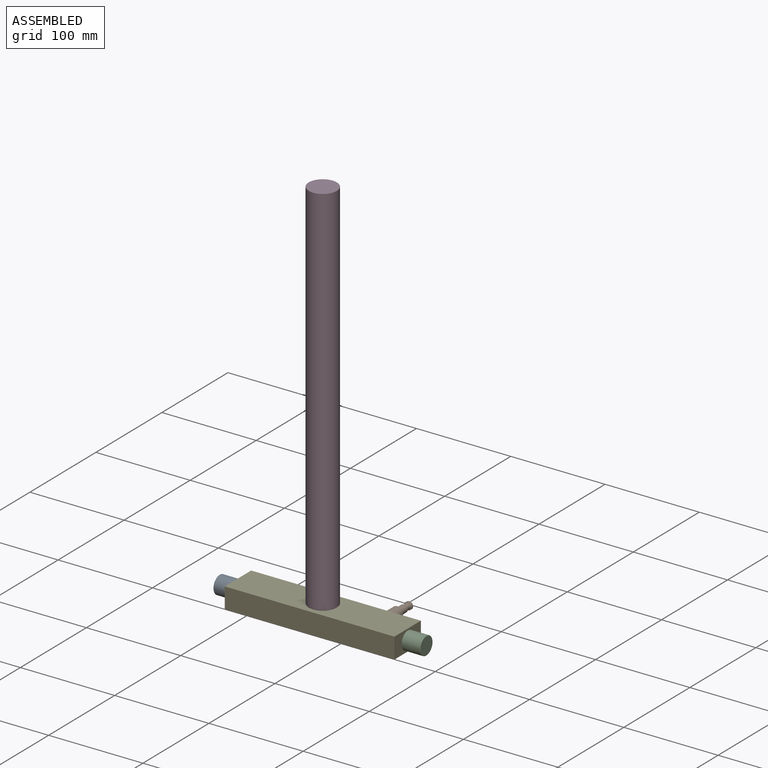
[diagram: assembled view]
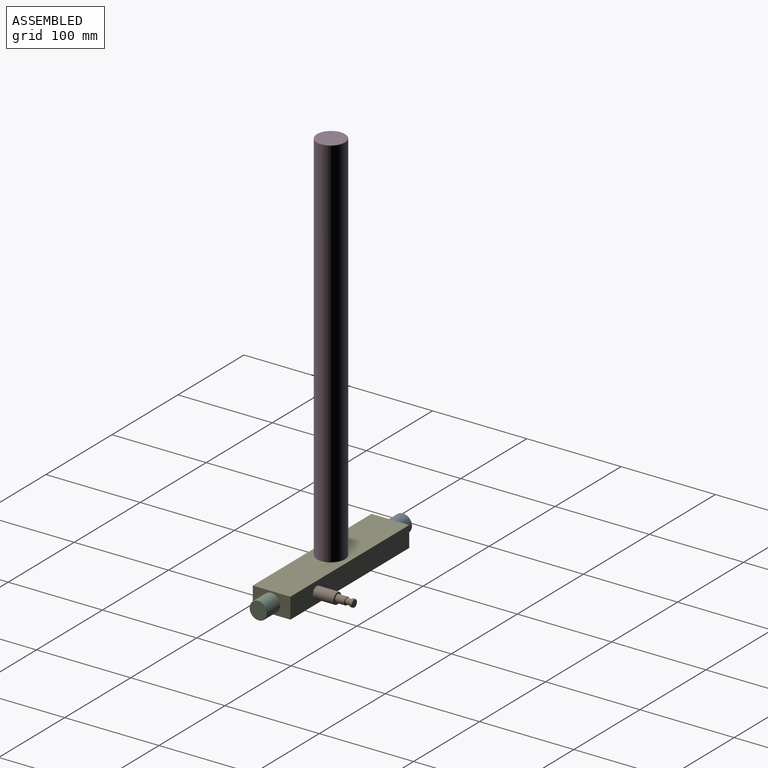
[diagram: assembled view, second angle]
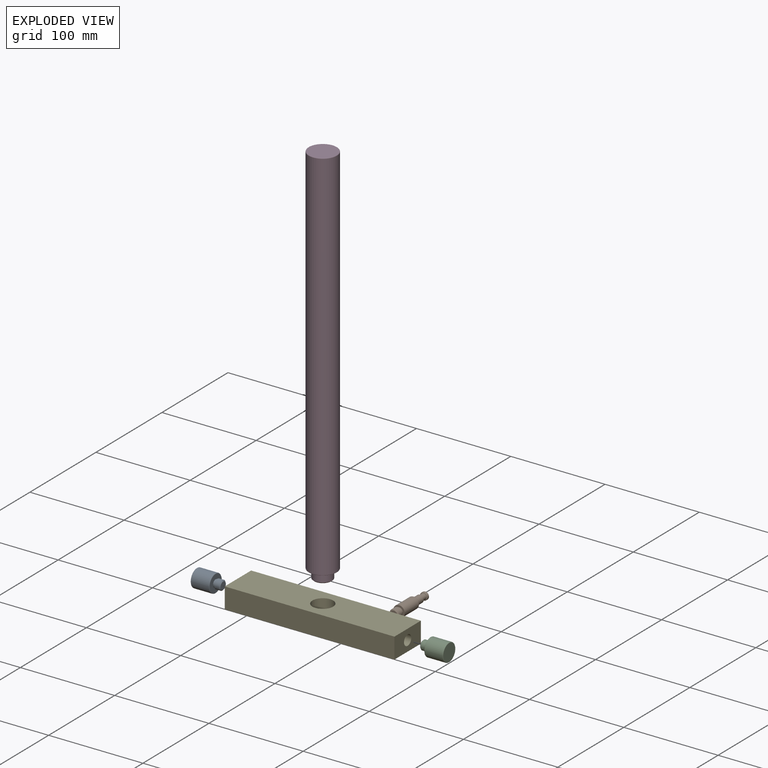
[diagram: exploded view]
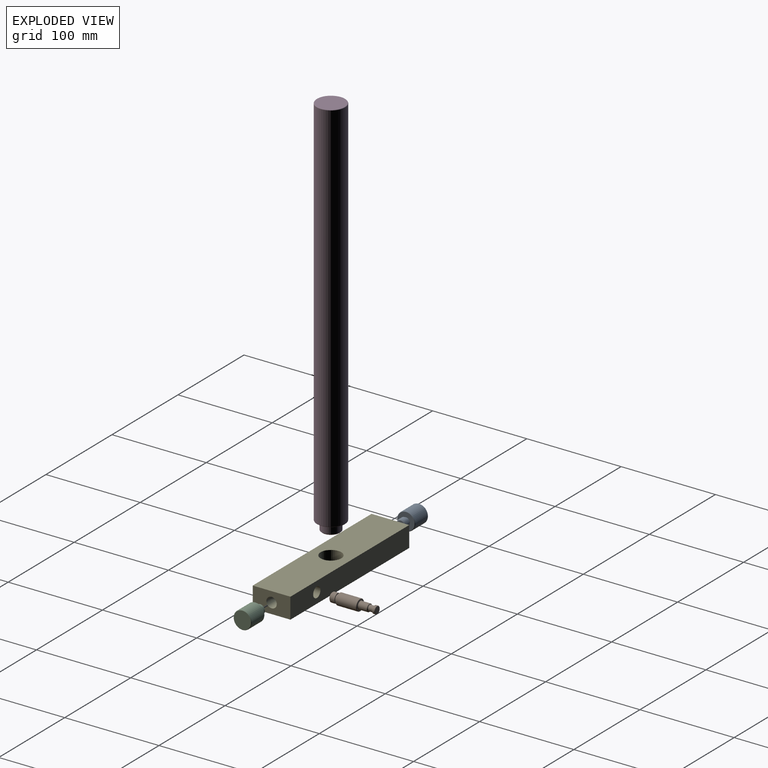
[diagram: exploded view, second angle]
ASSEMBLY  parts=5 mates=4
PART A: 10 faces, bbox 20.6x20.6x28 mm
  f0: cylinder r=9.5mm len=19mm, axis (0,0,1), area 1134.1mm2, adj f3,f4
  f1: plane 18x18mm, normal (0,0,-1), area 254.5mm2, adj f4
  f2: plane 18x18mm, normal (0,0,1), area 204.2mm2, adj f3,f6
  f3: torus R=9mm, axis (0,0,1), area 46mm2, adj f0,f2
  f4: torus R=9mm, axis (0,0,1), area 46mm2, adj f0,f1
  f5: plane 10x10mm, normal (0,0,-1), area 28.3mm2, adj f6,f9
  f6: cylinder r=4mm len=8mm, axis (0,0,1), area 50.3mm2, adj f2,f5
  f7: plane 8x8mm, normal (0,0,1), area 50.3mm2, adj f8
  f8: cone r=4mm half-angle=45deg, axis (0,0,-1), area 40mm2, adj f7,f9
  f9: cylinder r=5mm len=10mm, axis (0,0,-1), area 157.1mm2, adj f5,f8
PART B: 19 faces, bbox 13x13x48 mm
  f0: cylinder r=6mm len=21.5mm, axis (0,0,1), area 810.5mm2, adj f1,f8
  f1: plane 12x12mm, normal (0,0,1), area 62.8mm2, adj f0,f15
  f2: cylinder r=4mm len=9mm, axis (0,0,-1), area 226.2mm2, adj f7,f12
  f3: plane 11x11mm, normal (0,0,-1), area 31.4mm2, adj f7,f8
  f4: cylinder r=4mm len=8mm, axis (0,0,-1), area 50.3mm2, adj f9,f11
  f5: cylinder r=3mm len=6mm, axis (0,0,-1), area 75.4mm2, adj f10,f13
  f6: plane 7x7mm, normal (0,0,-1), area 38.5mm2, adj f9
  f7: torus R=4.5mm, axis (0,0,1), area 20.6mm2, adj f2,f3
  f8: torus R=5.5mm, axis (0,0,1), area 28.7mm2, adj f0,f3
  f9: torus R=3.5mm, axis (0,0,1), area 18.8mm2, adj f4,f6
  f10: torus R=3.5mm, axis (0,0,1), area 15.7mm2, adj f5,f11
  f11: torus R=3.5mm, axis (0,0,1), area 18.8mm2, adj f4,f10
  f12: torus R=3.5mm, axis (0,0,1), area 18.8mm2, adj f2,f13
  f13: torus R=3.5mm, axis (0,0,1), area 15.7mm2, adj f5,f12
  f14: plane 10x10mm, normal (0,0,-1), area 28.3mm2, adj f15,f17
  f15: cylinder r=4mm len=8mm, axis (0,0,1), area 50.3mm2, adj f1,f14
  f16: plane 8x8mm, normal (0,0,1), area 50.3mm2, adj f18
  f17: cylinder r=5mm len=10mm, axis (0,0,-1), area 157.1mm2, adj f14,f18
  f18: cone r=4mm half-angle=45deg, axis (0,0,-1), area 40mm2, adj f16,f17
PART C: same geometry as A
PART D: 10 faces, bbox 32.5x32.5x410 mm
  f0: cylinder r=15mm len=399mm, axis (0,0,1), area 37604.9mm2, adj f3,f4
  f1: plane 29x29mm, normal (0,0,-1), area 660.5mm2, adj f4
  f2: plane 29x29mm, normal (0,0,1), area 406.1mm2, adj f3,f6
  f3: torus R=14.5mm, axis (0,0,1), area 73.1mm2, adj f0,f2
  f4: torus R=14.5mm, axis (0,0,1), area 73.1mm2, adj f0,f1
  f5: plane 20x20mm, normal (0,0,-1), area 59.7mm2, adj f6,f9
  f6: cylinder r=9mm len=18mm, axis (0,0,1), area 113.1mm2, adj f2,f5
  f7: plane 18x18mm, normal (0,0,1), area 254.5mm2, adj f8
  f8: cone r=9mm half-angle=45deg, axis (0,0,-1), area 84.4mm2, adj f7,f9
  f9: cylinder r=10mm len=20mm, axis (0,0,-1), area 439.8mm2, adj f5,f8
PART E: 14 faces, bbox 180x40x22 mm
  f0: plane 40x22mm, normal (-1,0,0), area 785mm2, adj f1,f3,f4,f5,f8
  f1: plane 180x22mm, normal (0,-1,0), area 3960mm2, adj f0,f2,f4,f5
  f2: plane 40x22mm, normal (1,0,0), area 785mm2, adj f1,f3,f4,f5,f10
  f3: plane 180x22mm, normal (0,1,0), area 3865mm2, adj f0,f2,f4,f5,f12
  f4: plane 180x40mm, normal (0,0,-1), area 7200mm2, adj f0,f1,f2,f3
  f5: plane 180x40mm, normal (0,0,1), area 6819.9mm2, adj f0,f1,f2,f3,f6
  f6: cylinder r=11mm len=22mm, axis (0,0,1), area 1036.7mm2, adj f5,f7
  f7: cone r=0mm half-angle=59deg, axis (0,0,1), area 443.5mm2, adj f6
  f8: cylinder r=5.5mm len=12mm, axis (-1,0,0), area 414.7mm2, adj f0,f9
  f9: cone r=0mm half-angle=59deg, axis (-1,0,0), area 110.9mm2, adj f8
  f10: cylinder r=5.5mm len=12mm, axis (1,0,0), area 414.7mm2, adj f2,f11
  f11: cone r=0mm half-angle=59deg, axis (1,0,0), area 110.9mm2, adj f10
  f12: cylinder r=5.5mm len=12mm, axis (0,1,0), area 414.7mm2, adj f3,f13
  f13: cone r=0mm half-angle=59deg, axis (0,1,0), area 110.9mm2, adj f12
PLACE A rot(axis=(0.71,0,0.71),180deg) t=(-42.47,5.33,15.22)mm
PLACE B rot(axis=(1,0,0),90deg) t=(97.03,25.33,15.22)mm
PLACE C rot(axis=(0.71,0,-0.71),180deg) t=(137.03,5.33,15.22)mm
PLACE D rot(axis=(1,0,0),180deg) t=(47.03,5.33,26.22)mm
PLACE E t=(47.03,5.33,26.22)mm
MATE fastened E.f12 <-> B.f0  axis (0,1,0) through (97.03,25.33,15.22)mm
MATE fastened C.f0 <-> E.f10  axis (-1,0,0) through (137.03,5.33,15.22)mm
MATE fastened A.f0 <-> E.f9  axis (1,0,0) through (-42.97,5.33,15.22)mm
MATE fastened D.f0 <-> E.f6  axis (0,0,-1) through (47.03,5.33,26.22)mm
